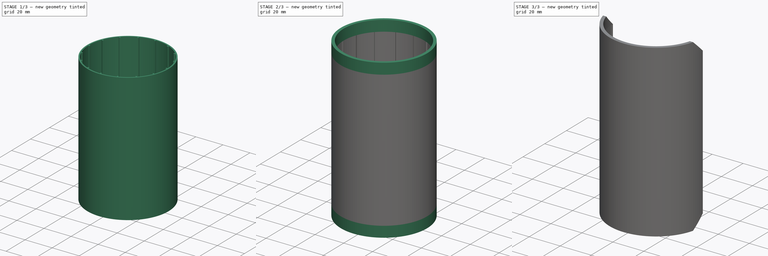
[diagram: build sequence overview — one tinted view per stage of 3, left to right]
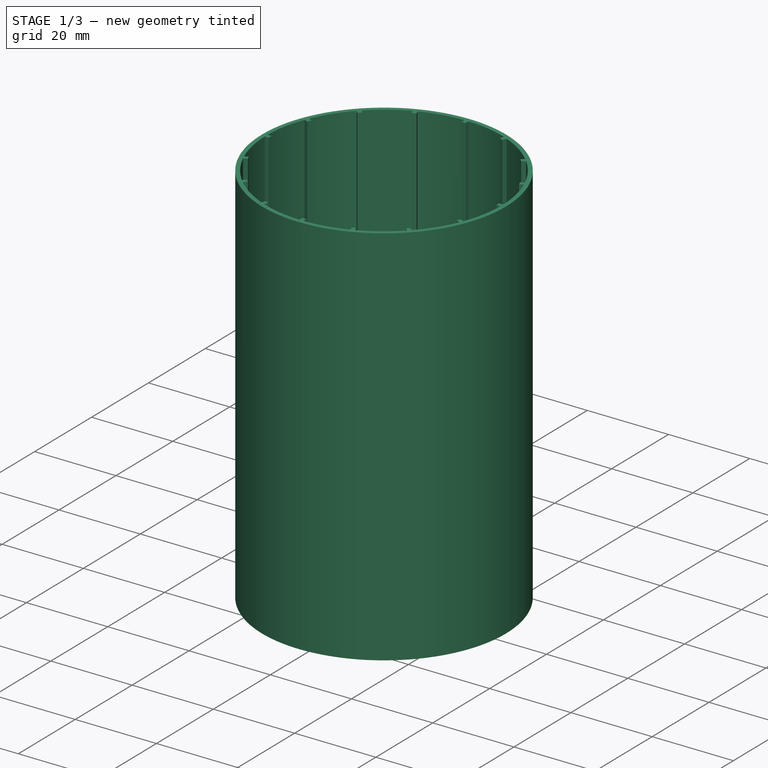
[diagram: stage 1 of 3 — iso view after this stage's code; geometry added in this stage tinted green]
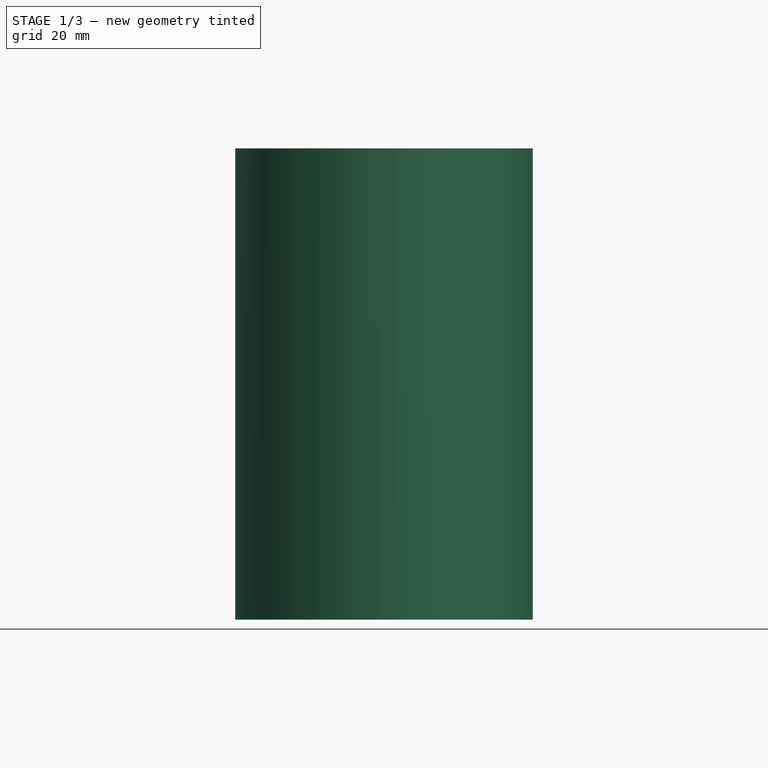
[diagram: stage 1 of 3 — front view after this stage's code; geometry added in this stage tinted green]
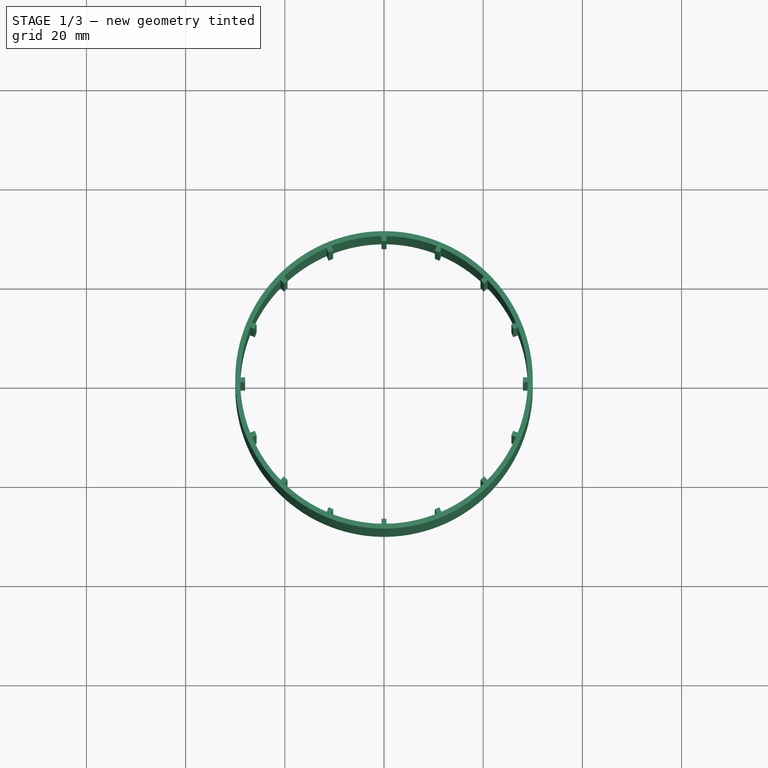
[diagram: stage 1 of 3 — top view after this stage's code; geometry added in this stage tinted green]
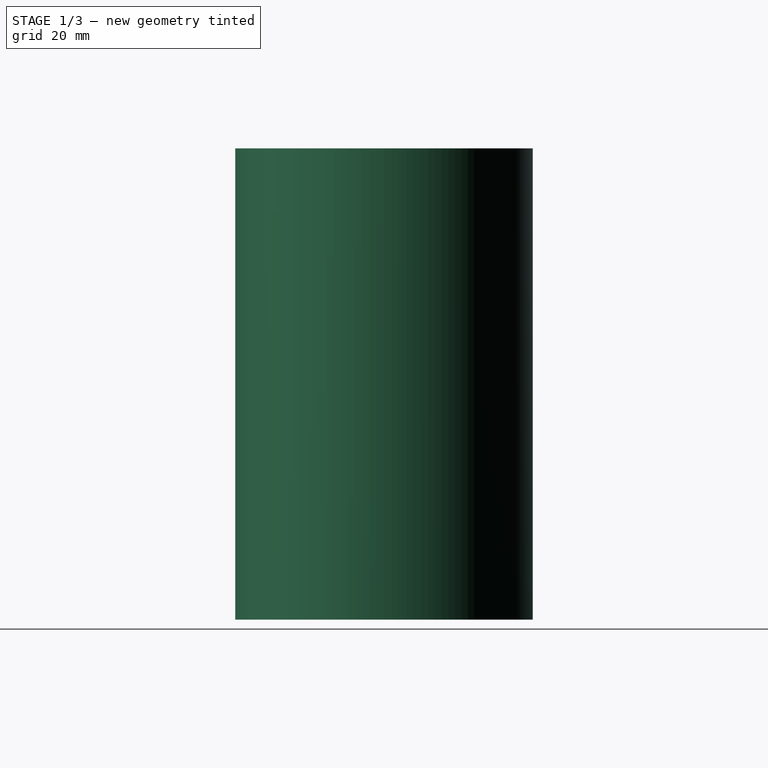
[diagram: stage 1 of 3 — right view after this stage's code; geometry added in this stage tinted green]
FCSTD DOCUMENT  (FreeCAD 1.0R39319 (Git))
Label: wall
License: All rights reserved
objects: Sketcher::SketchObject×7, PartDesign::Pad×4, PartDesign::PolarPattern×2, PartDesign::Pocket×2, PartDesign::Plane×1, PartDesign::Body×1
note: 38 computed .brp shape members not serialized (recipe doc carries the construction recipe); baked Part::Feature solids carry a one-line shape summary decoded from their .brp

FEATURE [Sketcher::SketchObject] Sketch
  ArcFitTolerance = 1e-06
  AttachmentSupport = -> [XY_Plane]
  FullyConstrained = true
  MakeInternals = false
  MapMode = 5
  sketch-geometry (2):
    g0: Circle CenterX=0 CenterY=0 CenterZ=0 NormalX=0 NormalY=0 NormalZ=1 AngleXU=0 Radius=30
    g1: Circle CenterX=0 CenterY=0 CenterZ=0 NormalX=0 NormalY=0 NormalZ=1 AngleXU=0 Radius=29
  constraints (4):
    c: Diameter(g0) = 60
    c: Coincident(g0,g-1)
    c: Diameter(g1) = 58
    c: Coincident(g1,g0)
FEATURE [PartDesign::Pad] Pad
  Direction = (0,0,1)
  Length = 95
  Length2 = 10
  Profile = -> Sketch
  ReferenceAxis = -> Sketch [N_Axis]
  Refine = true
  Suppressed = false
  Type = 0
FEATURE [Sketcher::SketchObject] Sketch001
  ArcFitTolerance = 1e-06
  AttachmentSupport = -> [Pad]
  ExternalGeometry = -> [Pad]
  FullyConstrained = true
  MakeInternals = false
  MapMode = 5
  Placement = pos=(0,0,95) rot=(0,0,1;0rad)
  sketch-geometry (1):
    g0: LineSegment StartX=0 StartY=0 StartZ=0 EndX=29 EndY=0 EndZ=0
  constraints (3):
    c: Coincident(g0,g-1)
    c: PointOnObject(g0,g-3)
    c: Horizontal(g0)
FEATURE [PartDesign::Plane] DatumPlane
  AttachmentSupport = -> [Sketch001,Pad]
  Length = 71.5715
  MapMode = 7
  Placement = pos=(29,0,95) rot=(0.57735,-0.57735,-0.57735;2.0944rad)
  ResizeMode = 0
  Width = 144.225
FEATURE [Sketcher::SketchObject] Sketch002
  ArcFitTolerance = 1e-06
  AttachmentSupport = -> [DatumPlane]
  ExternalGeometry = -> [Pad]
  FullyConstrained = true
  MakeInternals = false
  MapMode = 5
  Placement = pos=(29,0,95) rot=(0.57735,-0.57735,-0.57735;2.0944rad)
  sketch-geometry (4):
    g0: LineSegment StartX=-0.5 StartY=0 StartZ=0 EndX=-0.5 EndY=-95 EndZ=0
    g1: LineSegment StartX=-0.5 StartY=-95 StartZ=0 EndX=0.5 EndY=-95 EndZ=0
    g2: LineSegment StartX=0.5 StartY=-95 StartZ=0 EndX=0.5 EndY=0 EndZ=0
    g3: LineSegment StartX=0.5 StartY=0 StartZ=0 EndX=-0.5 EndY=0 EndZ=0
  constraints (10):
    c: Vertical(g0)
    c: Coincident(g0,g1)
    c: Coincident(g1,g2)
    c: Coincident(g2,g3)
    c: Coincident(g3,g0)
    c: Symmetric(g0,g2,g-2)
    c: Symmetric(g0,g1,g-2)
    c: PointOnObject(g0,g-4)
    c: PointOnObject(g0,g-3)
    c: DistanceX(g3,g3) = 1
FEATURE [PartDesign::Pad] Pad001
  BaseFeature = -> Pad
  Direction = (-1,0,0)
  Length = 1
  Length2 = 10
  Profile = -> Sketch002
  ReferenceAxis = -> Sketch002 [N_Axis]
  Refine = true
  Suppressed = false
  Type = 0
FEATURE [PartDesign::PolarPattern] PolarPattern
  Angle = 360
  Axis = -> Z_Axis
  BaseFeature = -> Pad001
  Mode = 0
  Occurrences = 16
  Offset = 120
  Originals = -> [Pad001]
  Refine = true
  Suppressed = false
  TransformMode = 0
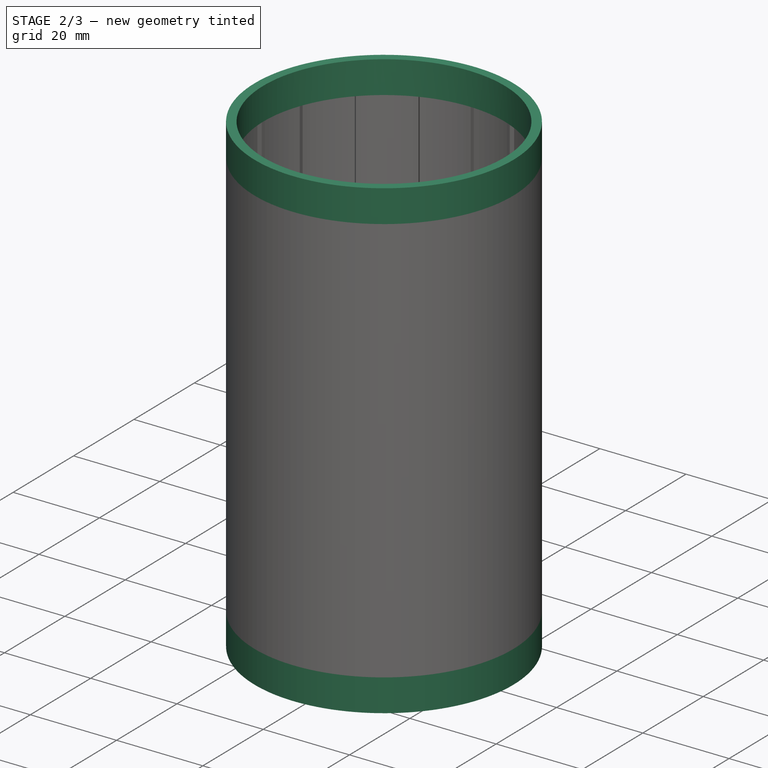
[diagram: stage 2 of 3 — iso view after this stage's code; geometry added in this stage tinted green]
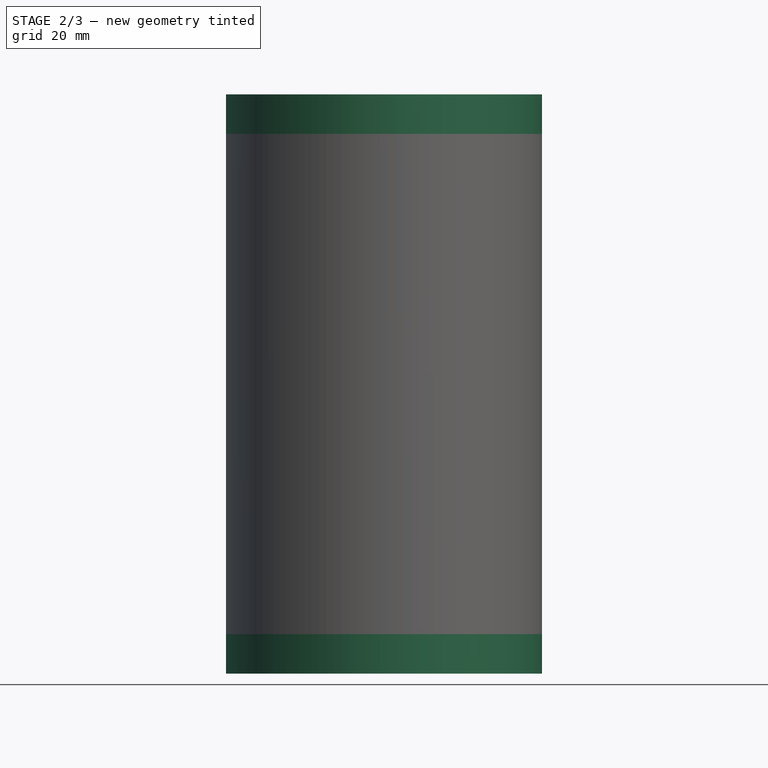
[diagram: stage 2 of 3 — front view after this stage's code; geometry added in this stage tinted green]
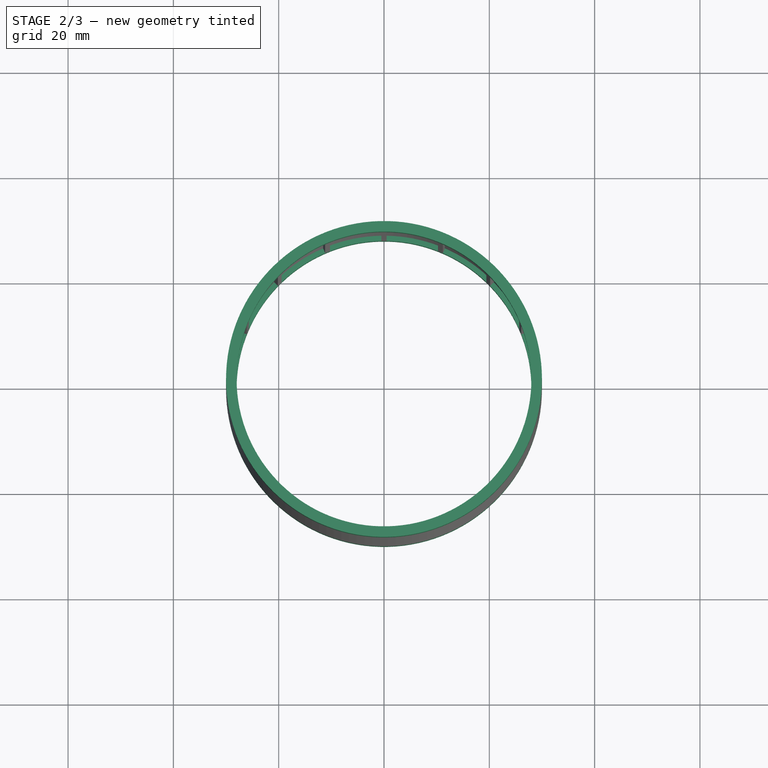
[diagram: stage 2 of 3 — top view after this stage's code; geometry added in this stage tinted green]
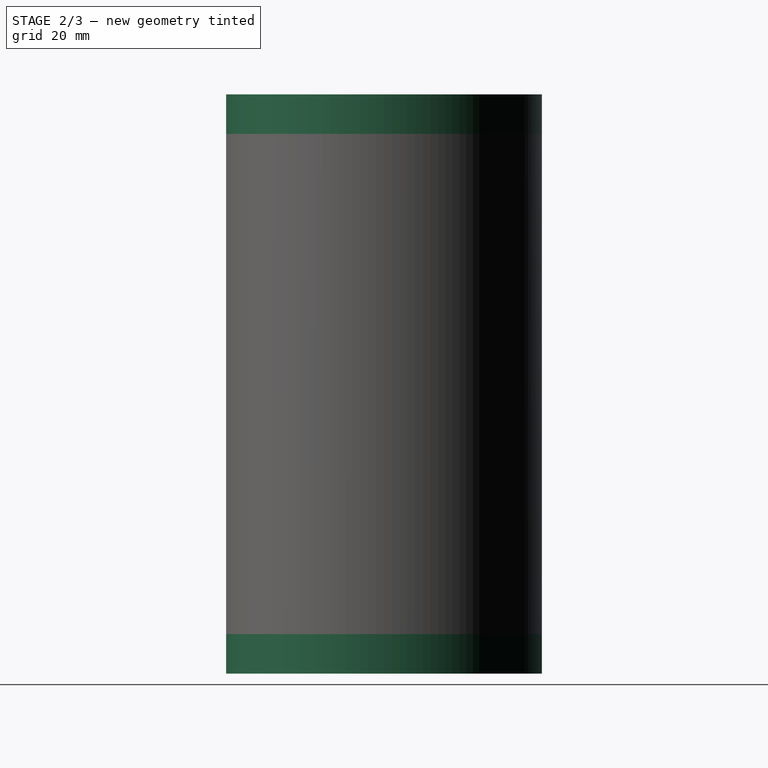
[diagram: stage 2 of 3 — right view after this stage's code; geometry added in this stage tinted green]
FEATURE [Sketcher::SketchObject] Sketch003
  ArcFitTolerance = 1e-06
  AttachmentSupport = -> [PolarPattern]
  ExternalGeometry = -> [PolarPattern]
  FullyConstrained = true
  MakeInternals = false
  MapMode = 5
  Placement = pos=(0,0,95) rot=(0,0,1;0rad)
  sketch-geometry (2):
    g0: Circle CenterX=0 CenterY=0 CenterZ=0 NormalX=0 NormalY=0 NormalZ=1 AngleXU=0 Radius=30
    g1: Circle CenterX=0 CenterY=0 CenterZ=0 NormalX=0 NormalY=0 NormalZ=1 AngleXU=0 Radius=28
  constraints (4):
    c: Coincident(g0,g-1)
    c: Tangent(g0,g-3)
    c: Diameter(g1) = 56
    c: Coincident(g1,g0)
FEATURE [PartDesign::Pad] Pad002
  BaseFeature = -> PolarPattern
  Direction = (0,0,1)
  Length = 7.5
  Length2 = 10
  Profile = -> Sketch003
  ReferenceAxis = -> Sketch003 [N_Axis]
  Refine = true
  Suppressed = false
  Type = 0
FEATURE [Sketcher::SketchObject] Sketch004
  ArcFitTolerance = 1e-06
  AttachmentSupport = -> [Pad002]
  ExternalGeometry = -> [Pad002]
  FullyConstrained = true
  MakeInternals = false
  MapMode = 5
  Placement = pos=(0,0,0) rot=(1,0,0;3.14159rad)
  sketch-geometry (2):
    g0: Circle CenterX=0 CenterY=0 CenterZ=0 NormalX=0 NormalY=0 NormalZ=1 AngleXU=0 Radius=30
    g1: Circle CenterX=0 CenterY=0 CenterZ=0 NormalX=0 NormalY=0 NormalZ=1 AngleXU=0 Radius=28
  constraints (4):
    c: Coincident(g0,g-1)
    c: Tangent(g0,g-3)
    c: Diameter(g1) = 56
    c: Coincident(g1,g-1)
FEATURE [PartDesign::Pad] Pad003
  BaseFeature = -> Pad002
  Direction = (0,0,-1)
  Length = 7.5
  Length2 = 10
  Profile = -> Sketch004
  ReferenceAxis = -> Sketch004 [N_Axis]
  Refine = true
  Suppressed = false
  Type = 0
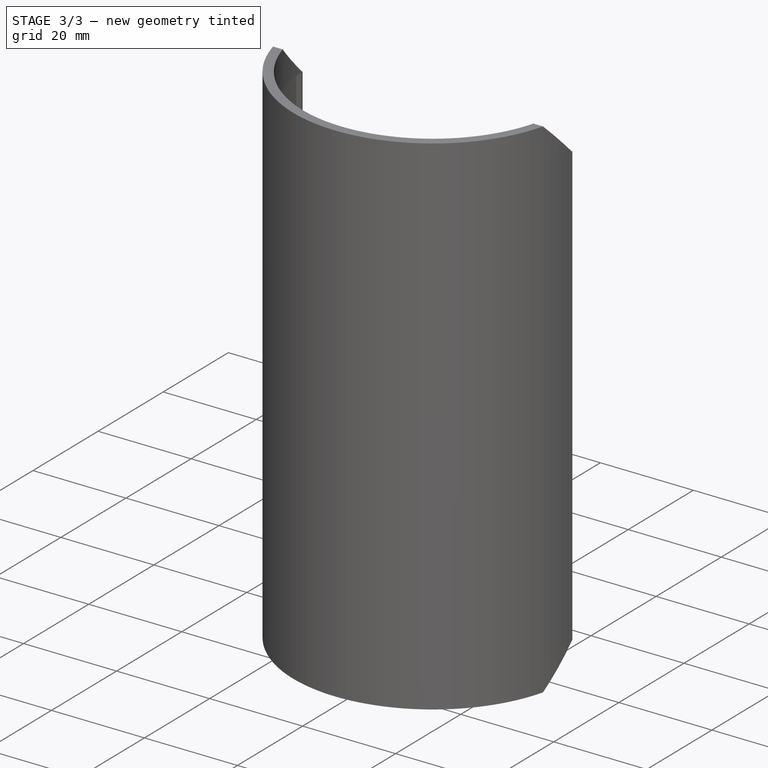
[diagram: stage 3 of 3 — iso view after this stage's code; geometry added in this stage tinted green]
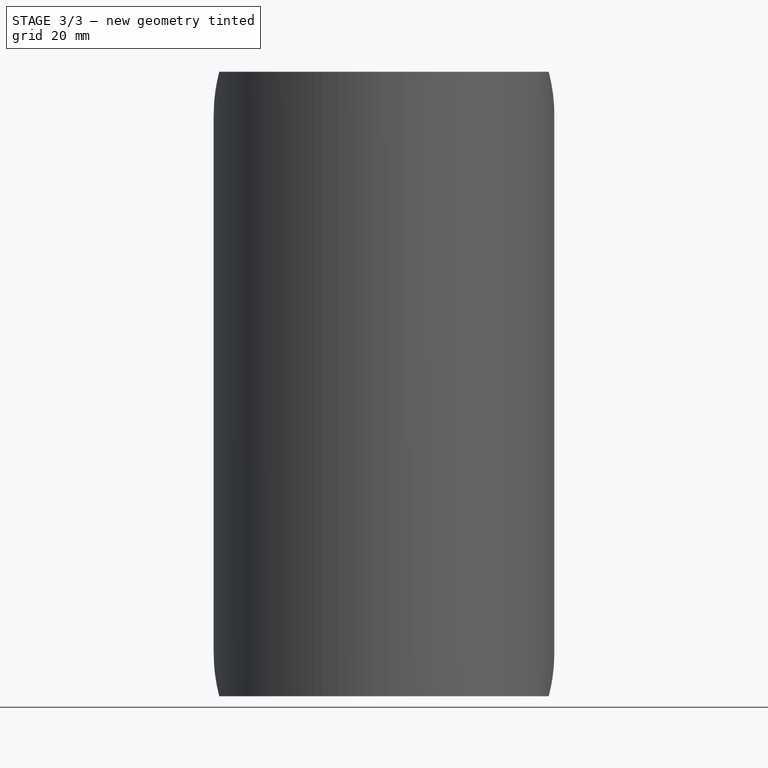
[diagram: stage 3 of 3 — front view after this stage's code; geometry added in this stage tinted green]
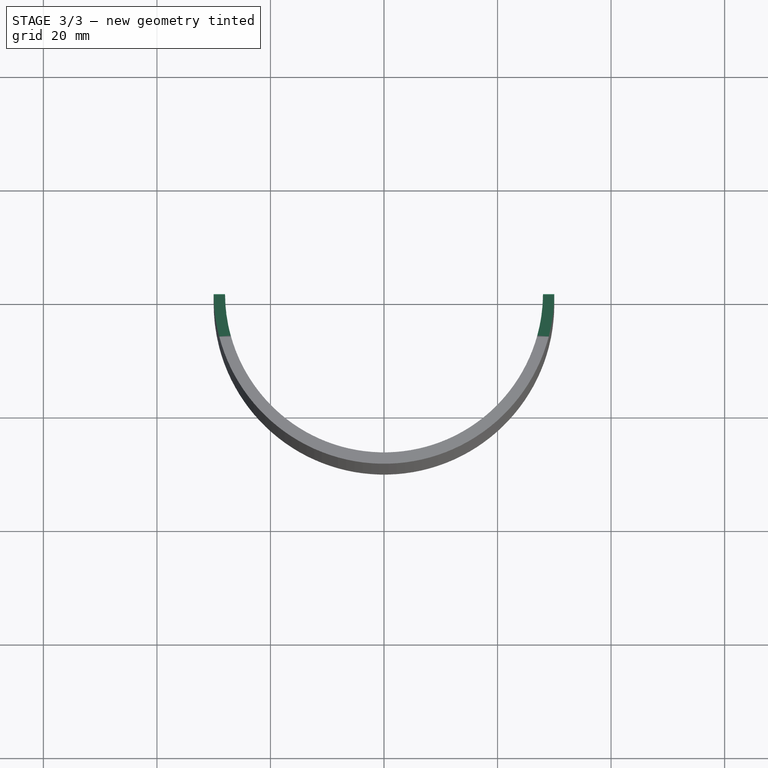
[diagram: stage 3 of 3 — top view after this stage's code; geometry added in this stage tinted green]
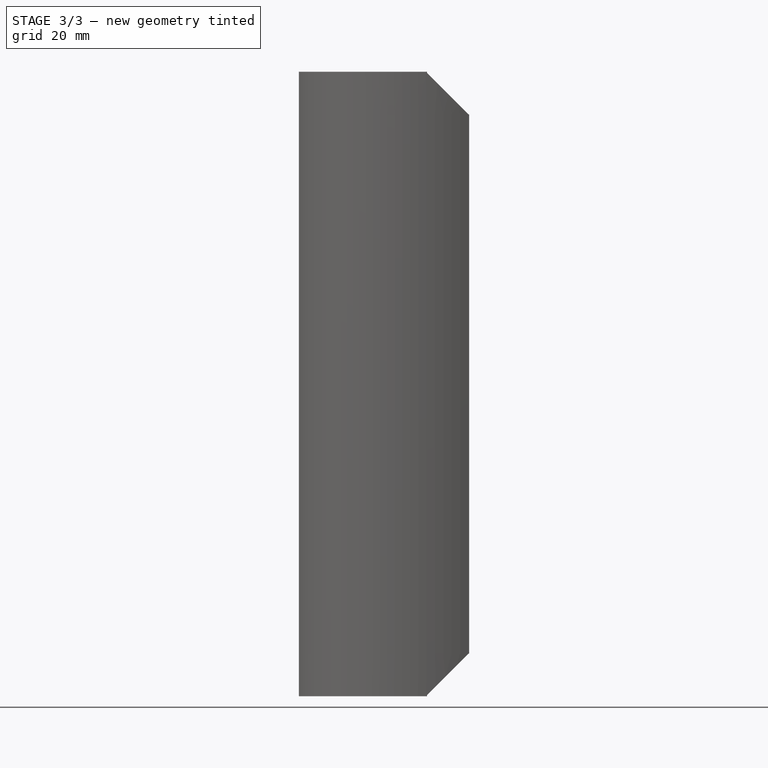
[diagram: stage 3 of 3 — right view after this stage's code; geometry added in this stage tinted green]
FEATURE [Sketcher::SketchObject] Sketch005
  ArcFitTolerance = 1e-06
  AttachmentSupport = -> [Pad003]
  FullyConstrained = false
  MakeInternals = false
  MapMode = 5
  Placement = pos=(0,0,-7.5) rot=(1,0,0;3.14159rad)
  sketch-geometry (4):
    g0: LineSegment StartX=-36.8216 StartY=0 StartZ=0 EndX=-36.8216 EndY=-40.2937 EndZ=0
    g1: LineSegment StartX=-36.8216 StartY=-40.2937 StartZ=0 EndX=36.6259 EndY=-40.2937 EndZ=0
    g2: LineSegment StartX=36.6259 StartY=-40.2937 StartZ=0 EndX=36.6259 EndY=0 EndZ=0
    g3: LineSegment StartX=36.6259 StartY=0 StartZ=0 EndX=-36.8216 EndY=0 EndZ=0
  constraints (9):
    c: Coincident(g0,g1)
    c: Coincident(g1,g2)
    c: Coincident(g2,g3)
    c: Coincident(g3,g0)
    c: Vertical(g0)
    c: Vertical(g2)
    c: Horizontal(g1)
    c: Horizontal(g3)
    c: PointOnObject(g0,g-1)
FEATURE [PartDesign::Pocket] Pocket
  BaseFeature = -> Pad003
  Direction = (0,0,1)
  Length = 5
  Length2 = 5
  Profile = -> Sketch005
  ReferenceAxis = -> Sketch005 [N_Axis]
  Refine = true
  Suppressed = false
  Type = 1
FEATURE [Sketcher::SketchObject] Sketch006
  ArcFitTolerance = 1e-06
  AttachmentSupport = -> [DatumPlane]
  ExternalGeometry = -> [Pocket]
  FullyConstrained = true
  MakeInternals = false
  MapMode = 5
  Placement = pos=(29,0,95) rot=(0.57735,-0.57735,-0.57735;2.0944rad)
  sketch-geometry (8):
    g0: LineSegment StartX=-7.6 StartY=7.5 StartZ=0 EndX=7.6 EndY=7.5 EndZ=0
    g1: LineSegment StartX=7.6 StartY=7.5 StartZ=0 EndX=0.1 EndY=4e-16 EndZ=0
    g2: LineSegment StartX=0.1 StartY=4e-16 StartZ=0 EndX=-0.1 EndY=0 EndZ=0
    g3: LineSegment StartX=-0.1 StartY=0 StartZ=0 EndX=-7.6 EndY=7.5 EndZ=0
    g4: LineSegment StartX=7.6 StartY=-102.5 StartZ=0 EndX=-7.6 EndY=-102.5 EndZ=0
    g5: LineSegment StartX=-7.6 StartY=-102.5 StartZ=0 EndX=-0.1 EndY=-95 EndZ=0
    g6: LineSegment StartX=-0.1 StartY=-95 StartZ=0 EndX=0.1 EndY=-95 EndZ=0
    g7: LineSegment StartX=0.1 StartY=-95 StartZ=0 EndX=7.6 EndY=-102.5 EndZ=0
  constraints (20):
    c: PointOnObject(g0,g-3)
    c: Coincident(g0,g1)
    c: PointOnObject(g1,g-4)
    c: Coincident(g1,g2)
    c: Coincident(g2,g3)
    c: Coincident(g3,g0)
    c: Symmetric(g0,g0,g-2)
    c: Symmetric(g2,g1,g-2)
    c: DistanceX(g0,g0) = 15.2
    c: DistanceX(g2,g1) = 0.2
    c: PointOnObject(g4,g-6)
    c: Coincident(g4,g5)
    c: Coincident(g5,g6)
    c: PointOnObject(g6,g-5)
    c: Coincident(g6,g7)
    c: Coincident(g7,g4)
    c: Symmetric(g6,g5,g-2)
    c: Symmetric(g4,g4,g-2)
    c: DistanceX(g5,g6) = 0.2
    c: DistanceX(g4,g4) = 15.2
FEATURE [PartDesign::Pocket] Pocket001
  BaseFeature = -> Pocket
  Direction = (1,0,0)
  Length = 2
  Length2 = 2
  Profile = -> Sketch006
  ReferenceAxis = -> Sketch006 [N_Axis]
  Refine = true
  Suppressed = false
  Type = 4
FEATURE [PartDesign::PolarPattern] PolarPattern001
  Angle = 360
  Axis = -> Z_Axis
  BaseFeature = -> Pocket001
  Mode = 0
  Occurrences = 2
  Offset = 120
  Originals = -> [Pocket001]
  Refine = true
  Suppressed = false
  TransformMode = 0
FEATURE [PartDesign::Body] Body
  AllowCompound = false
  Group = -> [Sketch,Pad,Sketch001,DatumPlane,Sketch002,Pad001,PolarPattern,Sketch003,Pad002,Sketch004,Pad003,Sketch005,Pocket,Sketch006,Pocket001,PolarPattern001]
  Origin = -> Origin
  Tip = -> PolarPattern001
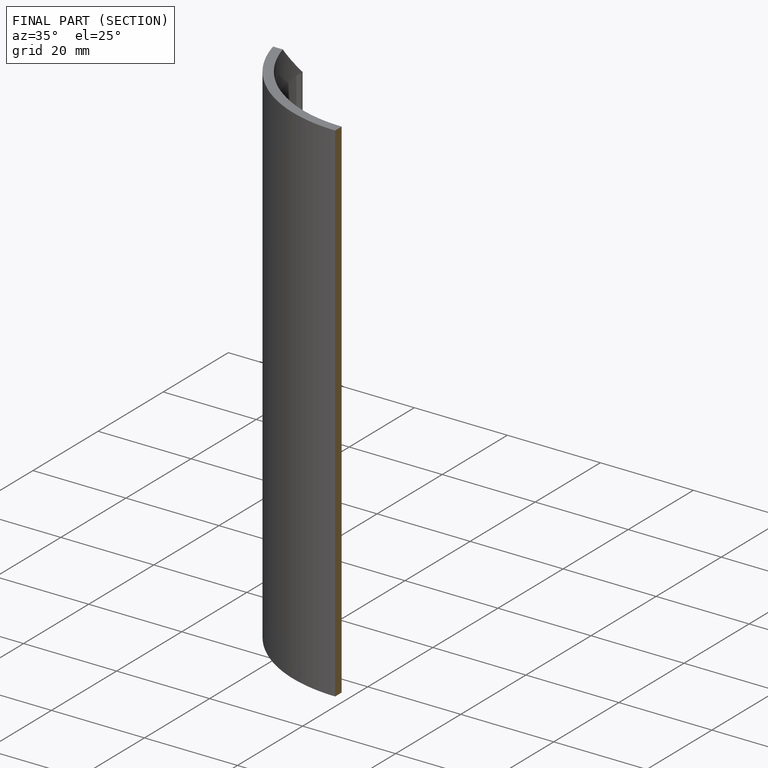
[diagram: finished part — half-section view (interior)]
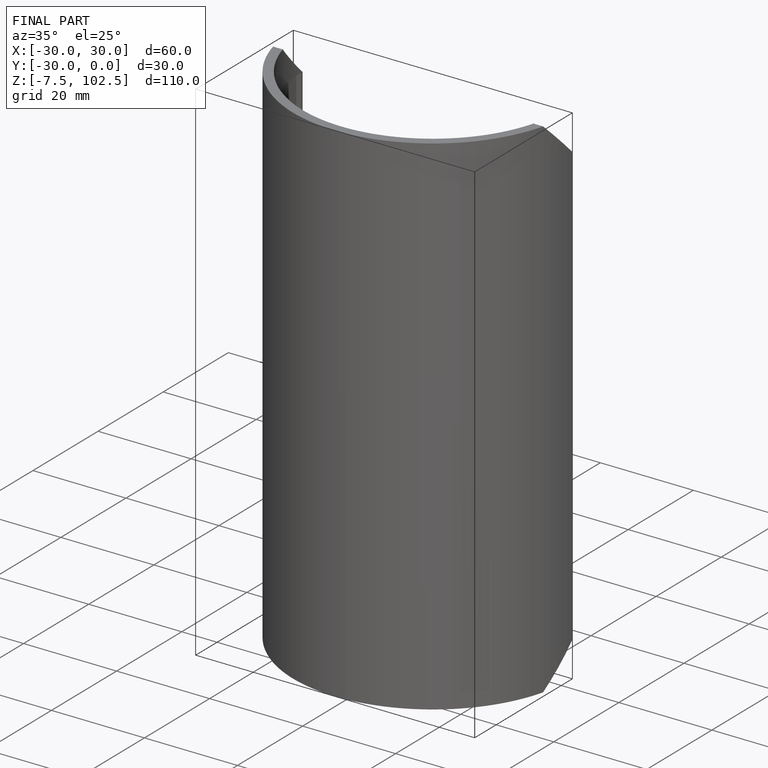
[diagram: finished part — iso view with bounding-box wireframe]
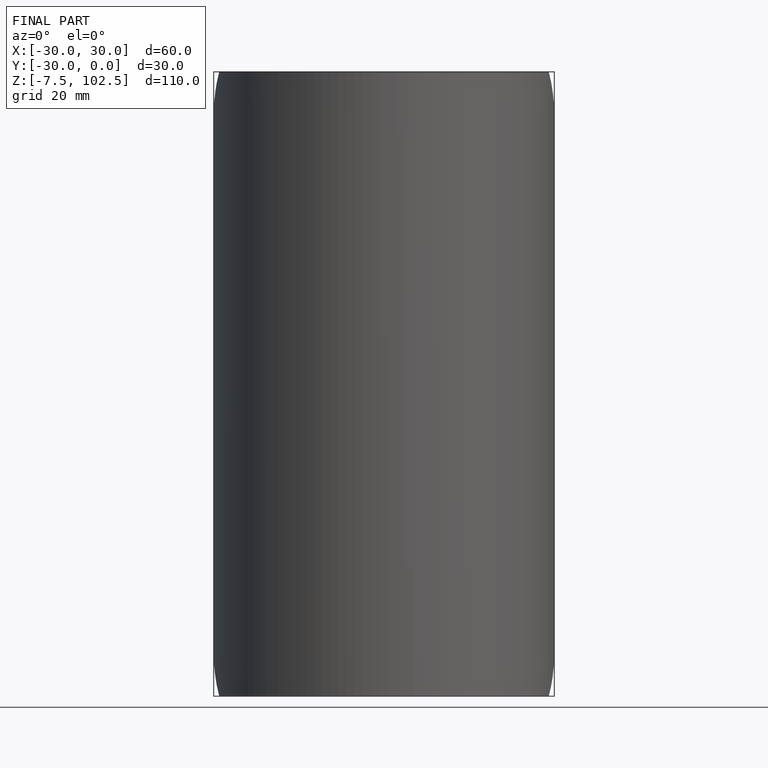
[diagram: finished part — front view with bounding-box wireframe]
